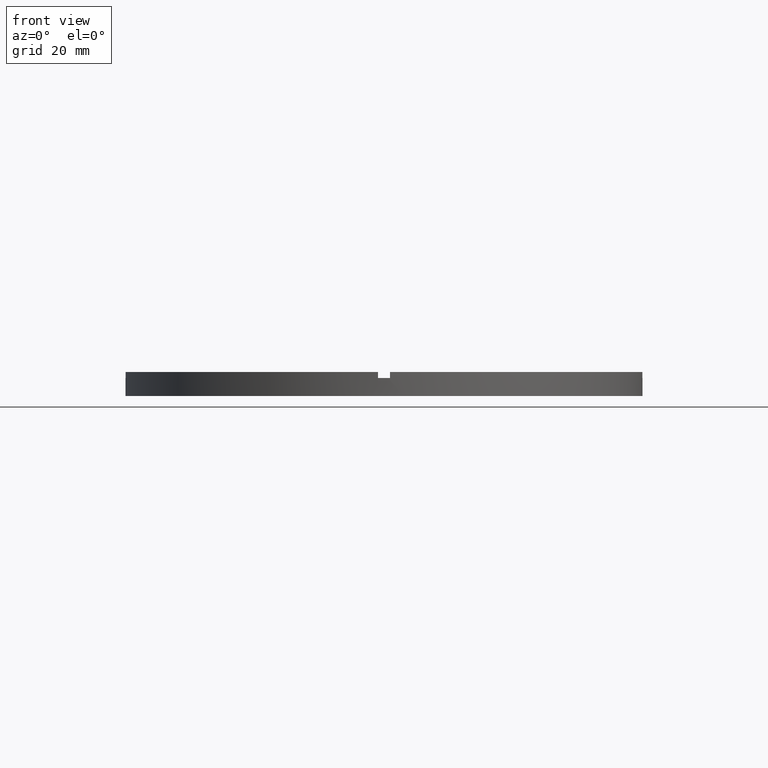
[diagram: clean part render]
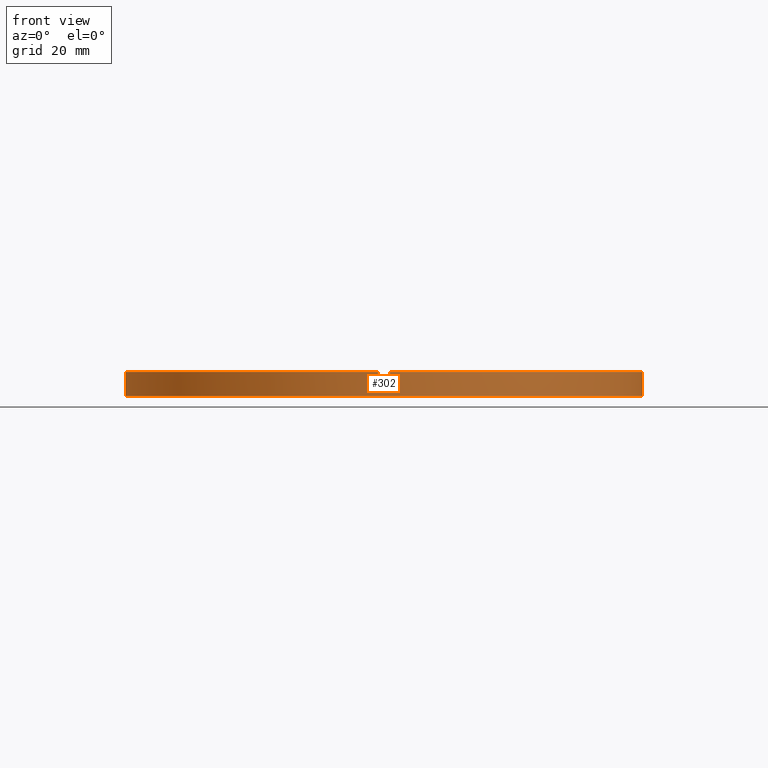
[diagram: same view with one face highlighted and labeled with its STEP entity id]
A machine part, front view. The second image highlights one B-rep face of the part: STEP entity #302.
In plain terms, the highlighted cylindrical surface (partial cylindrical patch) has radius 43 mm, axis along (-0, -0, -1).
Its self-contained STEP definition (entity closure, byte-faithful):
#7 = EDGE_CURVE ( 'NONE', #349, #636, #596, .T. ) ;
#11 = ORIENTED_EDGE ( 'NONE', *, *, #387, .T. ) ;
#22 = CIRCLE ( 'NONE', #212, 42.99999999999998579 ) ;
#25 = FACE_OUTER_BOUND ( 'NONE', #268, .T. ) ;
#26 = VERTEX_POINT ( 'NONE', #139 ) ;
#28 = CARTESIAN_POINT ( 'NONE',  ( 0.000000000000000000, 0.000000000000000000, 3.000000000000000000 ) ) ;
#36 = VECTOR ( 'NONE', #108, 1000.000000000000000 ) ;
#43 = VECTOR ( 'NONE', #657, 1000.000000000000000 ) ;
#45 = LINE ( 'NONE', #739, #577 ) ;
#56 = CYLINDRICAL_SURFACE ( 'NONE', #616, 42.99999999999998579 ) ;
#62 = DIRECTION ( 'NONE',  ( 0.000000000000000000, 0.000000000000000000, 1.000000000000000000 ) ) ;
#72 = LINE ( 'NONE', #624, #312 ) ;
#74 = AXIS2_PLACEMENT_3D ( 'NONE', #28, #401, #440 ) ;
#107 = CARTESIAN_POINT ( 'NONE',  ( 42.98837052040933315, -1.000000000000156541, 4.000000000000000000 ) ) ;
#108 = DIRECTION ( 'NONE',  ( -0.000000000000000000, -0.000000000000000000, -1.000000000000000000 ) ) ;
#122 = DIRECTION ( 'NONE',  ( -0.000000000000000000, -0.000000000000000000, -1.000000000000000000 ) ) ;
#132 = AXIS2_PLACEMENT_3D ( 'NONE', #678, #763, #199 ) ;
#139 = CARTESIAN_POINT ( 'NONE',  ( -1.000000000000158540, -42.98837052040933315, 3.000000000000000000 ) ) ;
#140 = CARTESIAN_POINT ( 'NONE',  ( -42.98837052040933315, -1.000000000000029310, 3.000000000000000000 ) ) ;
#144 = DIRECTION ( 'NONE',  ( 1.000000000000000000, 0.000000000000000000, 0.000000000000000000 ) ) ;
#154 = DIRECTION ( 'NONE',  ( 1.000000000000000000, 0.000000000000000000, 0.000000000000000000 ) ) ;
#158 = DIRECTION ( 'NONE',  ( -0.000000000000000000, -0.000000000000000000, -1.000000000000000000 ) ) ;
#161 = CARTESIAN_POINT ( 'NONE',  ( -42.99999999999998579, 0.000000000000000000, 3.000000000000000000 ) ) ;
#176 = VERTEX_POINT ( 'NONE', #107 ) ;
#187 = LINE ( 'NONE', #294, #188 ) ;
#188 = VECTOR ( 'NONE', #158, 1000.000000000000000 ) ;
#190 = VERTEX_POINT ( 'NONE', #688 ) ;
#196 = ORIENTED_EDGE ( 'NONE', *, *, #614, .F. ) ;
#199 = DIRECTION ( 'NONE',  ( 1.000000000000000000, 0.000000000000000000, 0.000000000000000000 ) ) ;
#212 = AXIS2_PLACEMENT_3D ( 'NONE', #411, #451, #544 ) ;
#223 = EDGE_CURVE ( 'NONE', #636, #499, #280, .T. ) ;
#229 = LINE ( 'NONE', #644, #519 ) ;
#239 = VERTEX_POINT ( 'NONE', #350 ) ;
#246 = VERTEX_POINT ( 'NONE', #602 ) ;
#249 = VERTEX_POINT ( 'NONE', #646 ) ;
#263 = ORIENTED_EDGE ( 'NONE', *, *, #455, .T. ) ;
#268 = EDGE_LOOP ( 'NONE', ( #196, #356, #11, #457, #263, #702, #486, #353, #536, #359, #498, #272 ) ) ;
#269 = EDGE_CURVE ( 'NONE', #246, #176, #282, .T. ) ;
#272 = ORIENTED_EDGE ( 'NONE', *, *, #223, .T. ) ;
#276 = EDGE_CURVE ( 'NONE', #770, #286, #22, .T. ) ;
#280 = CIRCLE ( 'NONE', #417, 42.99999999999998579 ) ;
#282 = CIRCLE ( 'NONE', #132, 42.99999999999998579 ) ;
#286 = VERTEX_POINT ( 'NONE', #377 ) ;
#288 = DIRECTION ( 'NONE',  ( 0.000000000000000000, 0.000000000000000000, 1.000000000000000000 ) ) ;
#294 = CARTESIAN_POINT ( 'NONE',  ( -42.98837052040933315, -1.000000000000029310, 4.000000000000000000 ) ) ;
#298 = LINE ( 'NONE', #751, #43 ) ;
#301 = CARTESIAN_POINT ( 'NONE',  ( 0.000000000000000000, 0.000000000000000000, 4.000000000000000000 ) ) ;
#302 = ADVANCED_FACE ( 'NONE', ( #25 ), #56, .T. ) ;
#312 = VECTOR ( 'NONE', #656, 1000.000000000000000 ) ;
#349 = VERTEX_POINT ( 'NONE', #161 ) ;
#350 = CARTESIAN_POINT ( 'NONE',  ( -42.98837052040933315, -1.000000000000029310, 4.000000000000000000 ) ) ;
#353 = ORIENTED_EDGE ( 'NONE', *, *, #627, .F. ) ;
#356 = ORIENTED_EDGE ( 'NONE', *, *, #276, .F. ) ;
#359 = ORIENTED_EDGE ( 'NONE', *, *, #661, .F. ) ;
#377 = CARTESIAN_POINT ( 'NONE',  ( 42.99999999999998579, 5.265981236333616104E-15, 3.000000000000000000 ) ) ;
#387 = EDGE_CURVE ( 'NONE', #770, #176, #72, .T. ) ;
#389 = CARTESIAN_POINT ( 'NONE',  ( 42.98837052040933315, -1.000000000000156541, 3.000000000000000000 ) ) ;
#394 = CARTESIAN_POINT ( 'NONE',  ( 0.000000000000000000, 0.000000000000000000, 0.000000000000000000 ) ) ;
#399 = CIRCLE ( 'NONE', #74, 42.99999999999998579 ) ;
#401 = DIRECTION ( 'NONE',  ( 0.000000000000000000, 0.000000000000000000, 1.000000000000000000 ) ) ;
#404 = CARTESIAN_POINT ( 'NONE',  ( -42.99999999999998579, 0.000000000000000000, 0.000000000000000000 ) ) ;
#411 = CARTESIAN_POINT ( 'NONE',  ( 0.000000000000000000, 0.000000000000000000, 3.000000000000000000 ) ) ;
#413 = CARTESIAN_POINT ( 'NONE',  ( 42.99999999999998579, 5.265981236333616104E-15, 0.000000000000000000 ) ) ;
#417 = AXIS2_PLACEMENT_3D ( 'NONE', #394, #288, #144 ) ;
#440 = DIRECTION ( 'NONE',  ( 1.000000000000000000, 0.000000000000000000, 0.000000000000000000 ) ) ;
#451 = DIRECTION ( 'NONE',  ( 0.000000000000000000, 0.000000000000000000, 1.000000000000000000 ) ) ;
#455 = EDGE_CURVE ( 'NONE', #246, #249, #45, .T. ) ;
#457 = ORIENTED_EDGE ( 'NONE', *, *, #269, .F. ) ;
#466 = EDGE_CURVE ( 'NONE', #239, #754, #187, .T. ) ;
#486 = ORIENTED_EDGE ( 'NONE', *, *, #686, .T. ) ;
#491 = CIRCLE ( 'NONE', #674, 42.99999999999998579 ) ;
#498 = ORIENTED_EDGE ( 'NONE', *, *, #7, .T. ) ;
#499 = VERTEX_POINT ( 'NONE', #413 ) ;
#509 = DIRECTION ( 'NONE',  ( 0.000000000000000000, 0.000000000000000000, 1.000000000000000000 ) ) ;
#519 = VECTOR ( 'NONE', #509, 1000.000000000000000 ) ;
#536 = ORIENTED_EDGE ( 'NONE', *, *, #466, .T. ) ;
#544 = DIRECTION ( 'NONE',  ( 1.000000000000000000, 0.000000000000000000, 0.000000000000000000 ) ) ;
#560 = CIRCLE ( 'NONE', #694, 42.99999999999998579 ) ;
#577 = VECTOR ( 'NONE', #683, 1000.000000000000000 ) ;
#596 = LINE ( 'NONE', #734, #36 ) ;
#599 = CARTESIAN_POINT ( 'NONE',  ( 0.000000000000000000, 0.000000000000000000, 3.000000000000000000 ) ) ;
#602 = CARTESIAN_POINT ( 'NONE',  ( 0.9999999999998414602, -42.98837052040934026, 4.000000000000000000 ) ) ;
#614 = EDGE_CURVE ( 'NONE', #286, #499, #298, .T. ) ;
#616 = AXIS2_PLACEMENT_3D ( 'NONE', #301, #122, #621 ) ;
#621 = DIRECTION ( 'NONE',  ( -1.000000000000000000, 0.000000000000000000, 0.000000000000000000 ) ) ;
#624 = CARTESIAN_POINT ( 'NONE',  ( 42.98837052040933315, -1.000000000000156541, 4.000000000000000000 ) ) ;
#627 = EDGE_CURVE ( 'NONE', #239, #190, #560, .T. ) ;
#636 = VERTEX_POINT ( 'NONE', #404 ) ;
#644 = CARTESIAN_POINT ( 'NONE',  ( -1.000000000000158540, -42.98837052040933315, 4.000000000000000000 ) ) ;
#646 = CARTESIAN_POINT ( 'NONE',  ( 0.9999999999998414602, -42.98837052040934026, 3.000000000000000000 ) ) ;
#656 = DIRECTION ( 'NONE',  ( 0.000000000000000000, 0.000000000000000000, 1.000000000000000000 ) ) ;
#657 = DIRECTION ( 'NONE',  ( -0.000000000000000000, -0.000000000000000000, -1.000000000000000000 ) ) ;
#661 = EDGE_CURVE ( 'NONE', #349, #754, #399, .T. ) ;
#674 = AXIS2_PLACEMENT_3D ( 'NONE', #599, #682, #737 ) ;
#675 = EDGE_CURVE ( 'NONE', #26, #249, #491, .T. ) ;
#678 = CARTESIAN_POINT ( 'NONE',  ( 0.000000000000000000, 0.000000000000000000, 4.000000000000000000 ) ) ;
#682 = DIRECTION ( 'NONE',  ( -0.000000000000000000, 0.000000000000000000, 1.000000000000000000 ) ) ;
#683 = DIRECTION ( 'NONE',  ( -0.000000000000000000, -0.000000000000000000, -1.000000000000000000 ) ) ;
#686 = EDGE_CURVE ( 'NONE', #26, #190, #229, .T. ) ;
#688 = CARTESIAN_POINT ( 'NONE',  ( -1.000000000000158540, -42.98837052040933315, 4.000000000000000000 ) ) ;
#691 = CARTESIAN_POINT ( 'NONE',  ( 0.000000000000000000, 0.000000000000000000, 4.000000000000000000 ) ) ;
#694 = AXIS2_PLACEMENT_3D ( 'NONE', #691, #62, #154 ) ;
#702 = ORIENTED_EDGE ( 'NONE', *, *, #675, .F. ) ;
#734 = CARTESIAN_POINT ( 'NONE',  ( -42.99999999999998579, 0.000000000000000000, 4.000000000000000000 ) ) ;
#737 = DIRECTION ( 'NONE',  ( 1.000000000000000000, 0.000000000000000000, 0.000000000000000000 ) ) ;
#739 = CARTESIAN_POINT ( 'NONE',  ( 0.9999999999998414602, -42.98837052040934026, 4.000000000000000000 ) ) ;
#751 = CARTESIAN_POINT ( 'NONE',  ( 42.99999999999998579, 5.265981236333616104E-15, 4.000000000000000000 ) ) ;
#754 = VERTEX_POINT ( 'NONE', #140 ) ;
#763 = DIRECTION ( 'NONE',  ( 0.000000000000000000, 0.000000000000000000, 1.000000000000000000 ) ) ;
#770 = VERTEX_POINT ( 'NONE', #389 ) ;